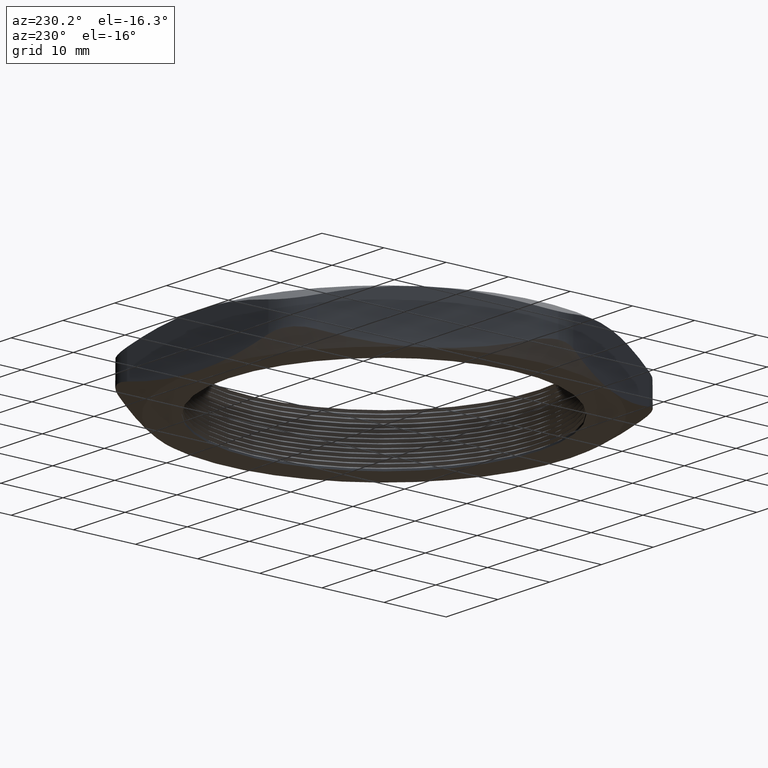
[diagram: clean part render]
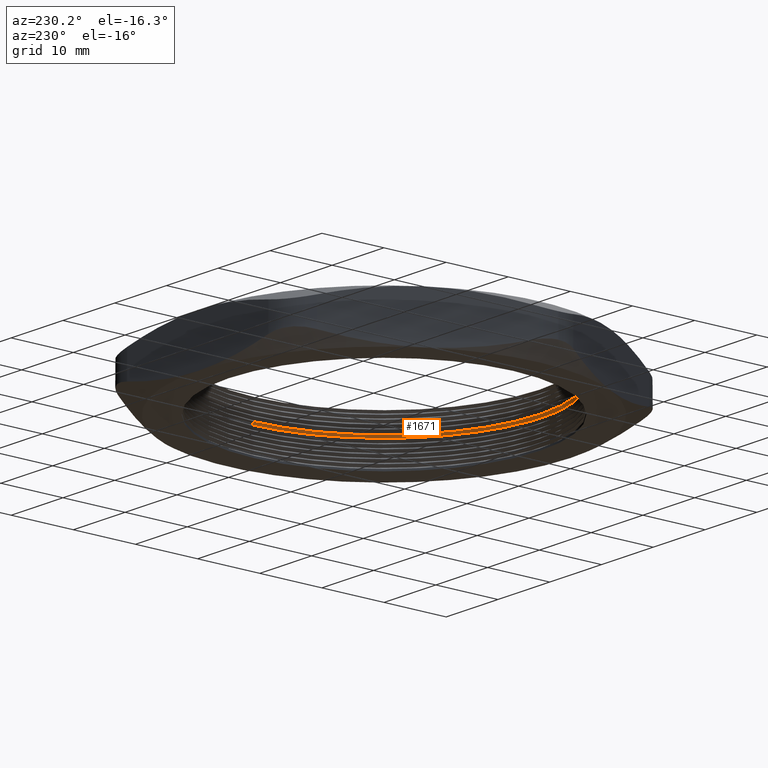
[diagram: same view with one face highlighted and labeled with its STEP entity id]
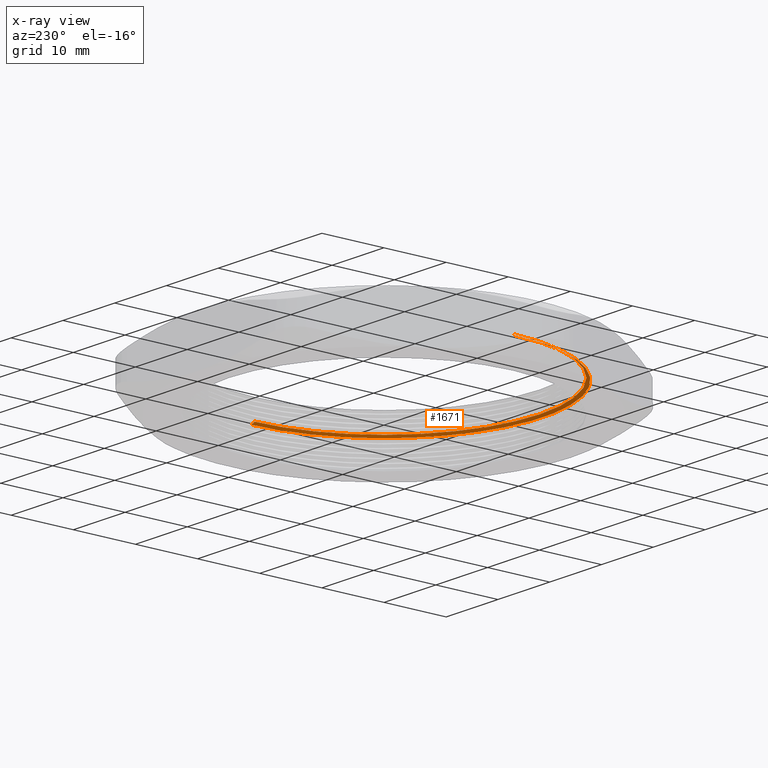
[diagram: x-ray of the same camera — body ghosted, the highlighted face saturated]
A machine part, auxiliary view. The second image highlights one B-rep face of the part: STEP entity #1671.
The next image is the same camera in x-ray: the body ghosted, the highlighted face saturated — about 13% of this face is hidden behind the body in this view.
In plain terms, the highlighted conical surface has half-angle 60 deg.
Its self-contained STEP definition (entity closure, byte-faithful):
#151 = DIRECTION ( 'NONE',  ( -0.8660254037844437000, 0.0000000000000000000, -0.4999999999999912300 ) ) ;
#152 = VECTOR ( 'NONE', #151, 39.37007874015748100 ) ;
#153 = CARTESIAN_POINT ( 'NONE',  ( -1.005000000000000100, 0.0000000000000000000, 0.1734529946162077000 ) ) ;
#154 = LINE ( 'NONE', #153, #152 ) ;
#165 = DIRECTION ( 'NONE',  ( -1.000000000000000000, 0.0000000000000000000, 0.0000000000000000000 ) ) ;
#166 = DIRECTION ( 'NONE',  ( 0.0000000000000000000, 0.0000000000000000000, -1.000000000000000000 ) ) ;
#167 = AXIS2_PLACEMENT_3D ( 'NONE', #169, #166, #165 ) ;
#168 = CONICAL_SURFACE ( 'NONE', #167, 1.005000000000000100, 1.047197551196607800 ) ;
#169 = CARTESIAN_POINT ( 'NONE',  ( 0.0000000000000000000, 0.0000000000000000000, 0.1734529946162077000 ) ) ;
#170 = FACE_OUTER_BOUND ( 'NONE', #1672, .T. ) ;
#200 = DIRECTION ( 'NONE',  ( 0.8660254037844437000, 1.060575238724913100E-016, -0.4999999999999912300 ) ) ;
#201 = VECTOR ( 'NONE', #200, 39.37007874015748100 ) ;
#202 = CARTESIAN_POINT ( 'NONE',  ( 1.005000000000000100, 1.230770033143090100E-016, 0.1734529946162077000 ) ) ;
#203 = LINE ( 'NONE', #202, #201 ) ;
#204 = CARTESIAN_POINT ( 'NONE',  ( 0.9849999999999999900, 1.206277097160143100E-016, 0.1849999999999999400 ) ) ;
#205 = CARTESIAN_POINT ( 'NONE',  ( -0.9849999999999999900, 0.0000000000000000000, 0.1849999999999999400 ) ) ;
#211 = DIRECTION ( 'NONE',  ( 1.000000000000000000, 0.0000000000000000000, 0.0000000000000000000 ) ) ;
#212 = DIRECTION ( 'NONE',  ( 0.0000000000000000000, 0.0000000000000000000, 1.000000000000000000 ) ) ;
#213 = CARTESIAN_POINT ( 'NONE',  ( 0.0000000000000000000, 0.0000000000000000000, 0.1849999999999999400 ) ) ;
#214 = AXIS2_PLACEMENT_3D ( 'NONE', #213, #212, #211 ) ;
#223 = CIRCLE ( 'NONE', #214, 0.9849999999999999900 ) ;
#1545 = VERTEX_POINT ( 'NONE', #2874 ) ;
#1547 = EDGE_CURVE ( 'NONE', #1545, #1548, #2873, .T. ) ;
#1548 = VERTEX_POINT ( 'NONE', #2868 ) ;
#1643 = ORIENTED_EDGE ( 'NONE', *, *, #1547, .F. ) ;
#1644 = ORIENTED_EDGE ( 'NONE', *, *, #1645, .F. ) ;
#1645 = EDGE_CURVE ( 'NONE', #1677, #1545, #154, .T. ) ;
#1671 = ADVANCED_FACE ( 'NONE', ( #170 ), #168, .F. ) ;
#1672 = EDGE_LOOP ( 'NONE', ( #1674, #1679, #1643, #1644 ) ) ;
#1674 = ORIENTED_EDGE ( 'NONE', *, *, #1675, .T. ) ;
#1675 = EDGE_CURVE ( 'NONE', #1677, #1678, #223, .T. ) ;
#1677 = VERTEX_POINT ( 'NONE', #205 ) ;
#1678 = VERTEX_POINT ( 'NONE', #204 ) ;
#1679 = ORIENTED_EDGE ( 'NONE', *, *, #1680, .T. ) ;
#1680 = EDGE_CURVE ( 'NONE', #1678, #1548, #203, .T. ) ;
#2868 = CARTESIAN_POINT ( 'NONE',  ( 1.005000000000000100, 1.230770033143090100E-016, 0.1734529946162077000 ) ) ;
#2869 = DIRECTION ( 'NONE',  ( 1.000000000000000000, 0.0000000000000000000, 0.0000000000000000000 ) ) ;
#2870 = DIRECTION ( 'NONE',  ( 0.0000000000000000000, 0.0000000000000000000, 1.000000000000000000 ) ) ;
#2871 = CARTESIAN_POINT ( 'NONE',  ( 0.0000000000000000000, 0.0000000000000000000, 0.1734529946162077000 ) ) ;
#2872 = AXIS2_PLACEMENT_3D ( 'NONE', #2871, #2870, #2869 ) ;
#2873 = CIRCLE ( 'NONE', #2872, 1.005000000000000100 ) ;
#2874 = CARTESIAN_POINT ( 'NONE',  ( -1.005000000000000100, 0.0000000000000000000, 0.1734529946162077000 ) ) ;